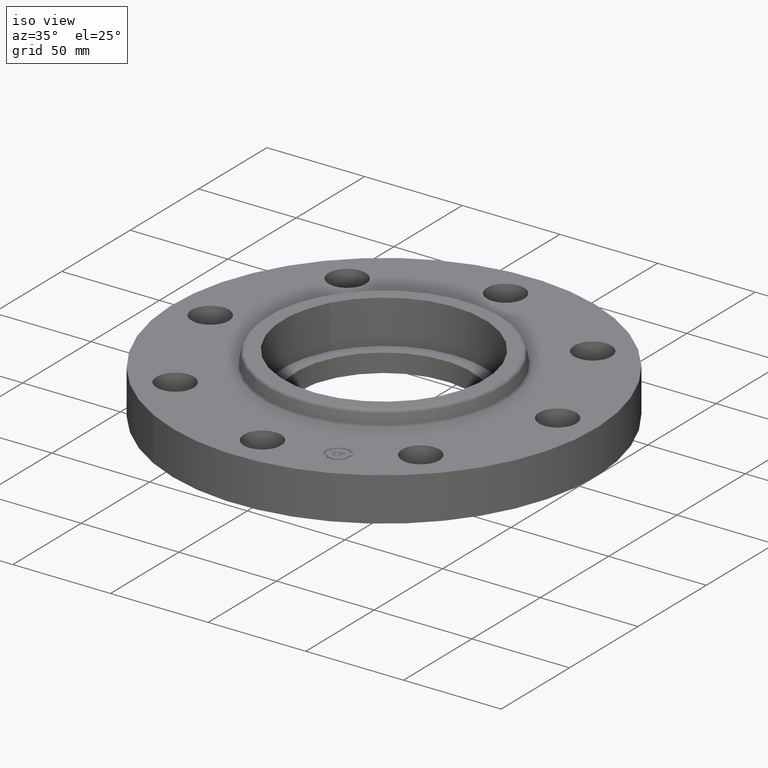
[diagram: clean part render]
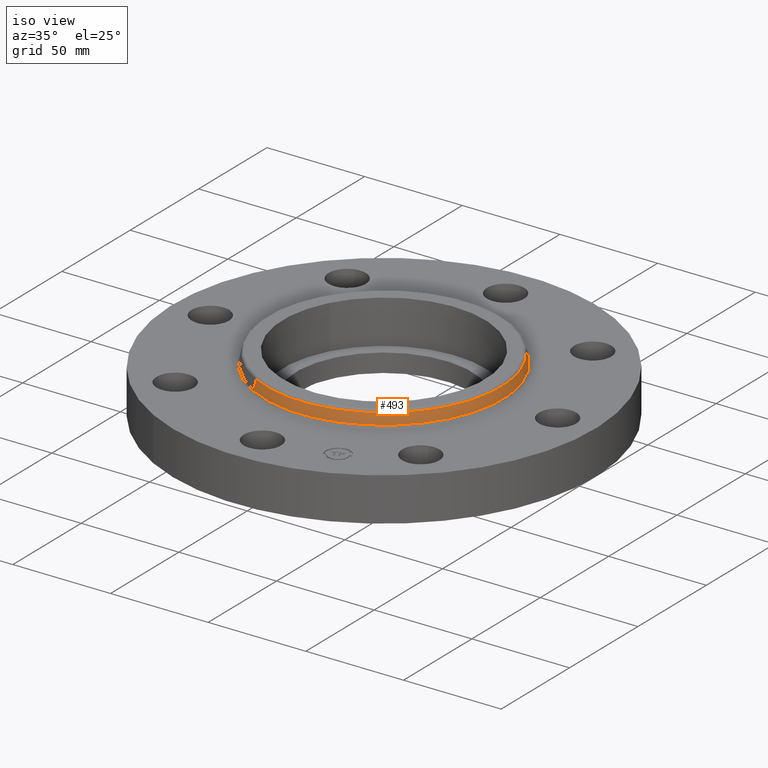
[diagram: same view with one face highlighted and labeled with its STEP entity id]
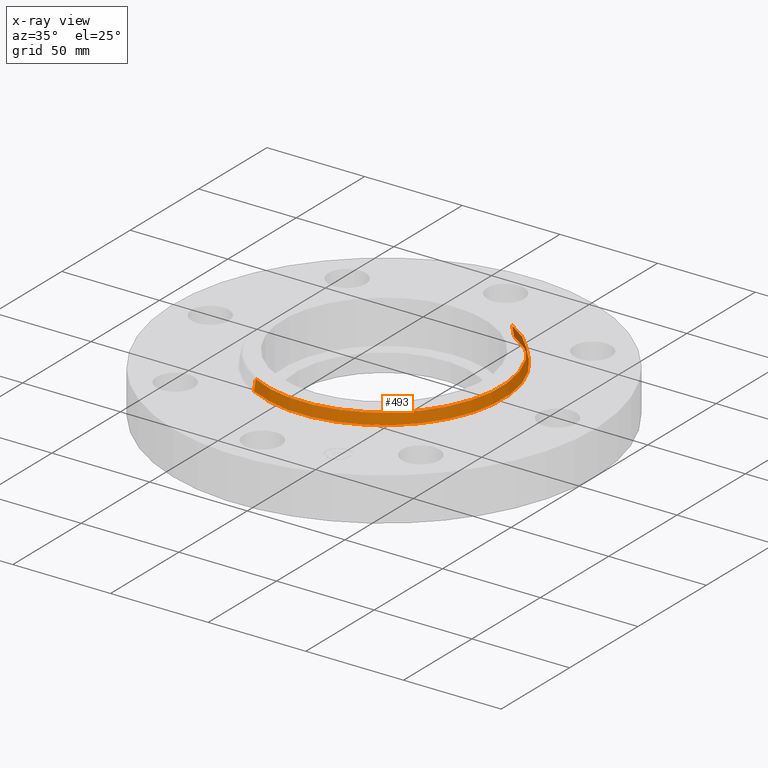
[diagram: x-ray of the same camera — body ghosted, the highlighted face saturated]
A machine part, iso view. The second image highlights one B-rep face of the part: STEP entity #493.
The next image is the same camera in x-ray: the body ghosted, the highlighted face saturated — about 0% of this face is hidden behind the body in this view.
In plain terms, the highlighted conical surface has half-angle 10 deg.
Its self-contained STEP definition (entity closure, byte-faithful):
#429=AXIS2_PLACEMENT_3D('Circle Axis2P3D',#427,#428,$) ;
#466=AXIS2_PLACEMENT_3D('Cone Axis2P3D',#463,#464,#465) ;
#477=AXIS2_PLACEMENT_3D('Circle Axis2P3D',#475,#476,$) ;
#424=CARTESIAN_POINT('Vertex',(1.14882704866,2.10291380694,0.929581109344)) ;
#427=CARTESIAN_POINT('Axis2P3D Location',(0.,0.,0.929581109344)) ;
#431=CARTESIAN_POINT('Vertex',(-1.14882704866,-2.10291380694,0.929581109344)) ;
#463=CARTESIAN_POINT('Axis2P3D Location',(0.,0.,1.14041889066)) ;
#468=CARTESIAN_POINT('Line Origine',(1.1399153934,2.08660113142,1.035)) ;
#472=CARTESIAN_POINT('Vertex',(1.13100373815,2.07028845589,1.14041889066)) ;
#475=CARTESIAN_POINT('Axis2P3D Location',(0.,0.,1.14041889066)) ;
#479=CARTESIAN_POINT('Vertex',(-1.13100373815,-2.07028845589,1.14041889066)) ;
#482=CARTESIAN_POINT('Line Origine',(-1.1399153934,-2.08660113142,1.035)) ;
#428=DIRECTION('Axis2P3D Direction',(0.,0.,-0.0393700787402)) ;
#464=DIRECTION('Axis2P3D Direction',(0.,0.,-0.0393700787402)) ;
#465=DIRECTION('Axis2P3D XDirection',(-0.0188750212049,-0.0345504945626,0.)) ;
#469=DIRECTION('Vector Direction',(0.00327761303565,0.00599963041829,-0.03877195878)) ;
#476=DIRECTION('Axis2P3D Direction',(0.,0.,-0.0393700787402)) ;
#483=DIRECTION('Vector Direction',(-0.00327761303565,-0.00599963041829,-0.03877195878)) ;
#470=VECTOR('Line Direction',#469,0.0393700787402) ;
#484=VECTOR('Line Direction',#483,0.0393700787402) ;
#488=ORIENTED_EDGE('',*,*,#433,.F.) ;
#489=ORIENTED_EDGE('',*,*,#474,.T.) ;
#490=ORIENTED_EDGE('',*,*,#481,.T.) ;
#491=ORIENTED_EDGE('',*,*,#486,.F.) ;
#493=ADVANCED_FACE('PartBody',(#492),#467,.T.) ;
#430=CIRCLE('generated circle',#429,2.3962575127) ;
#478=CIRCLE('generated circle',#477,2.3590811233) ;
#467=CONICAL_SURFACE('Cone',#466,2.3590811233,0.174532925199) ;
#433=EDGE_CURVE('',#425,#432,#430,.T.) ;
#474=EDGE_CURVE('',#425,#473,#471,.F.) ;
#481=EDGE_CURVE('',#473,#480,#478,.T.) ;
#486=EDGE_CURVE('',#432,#480,#485,.F.) ;
#487=EDGE_LOOP('',(#488,#489,#490,#491)) ;
#492=FACE_OUTER_BOUND('',#487,.T.) ;
#471=LINE('Line',#468,#470) ;
#485=LINE('Line',#482,#484) ;
#425=VERTEX_POINT('',#424) ;
#432=VERTEX_POINT('',#431) ;
#473=VERTEX_POINT('',#472) ;
#480=VERTEX_POINT('',#479) ;